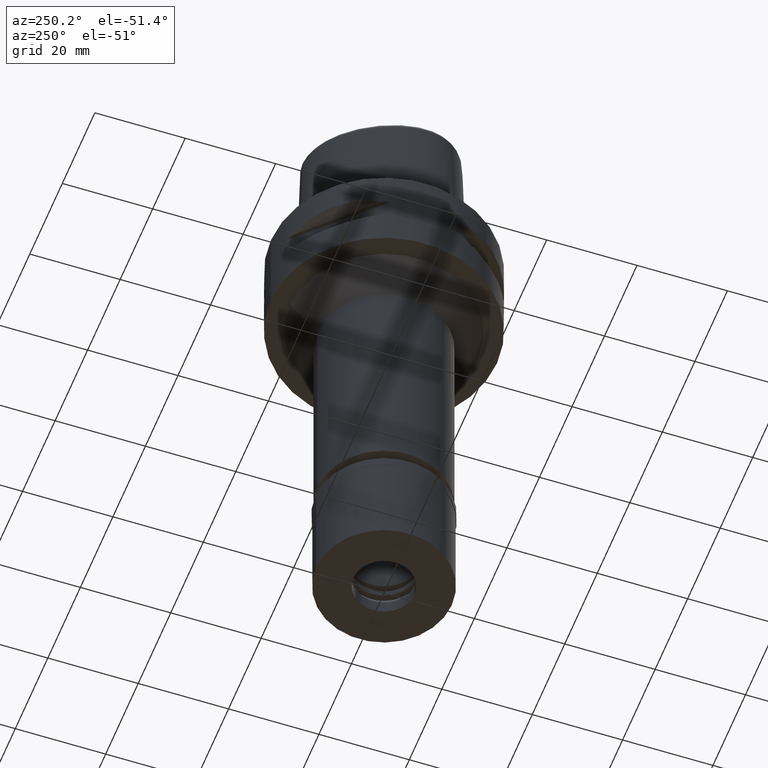
[diagram: clean part render]
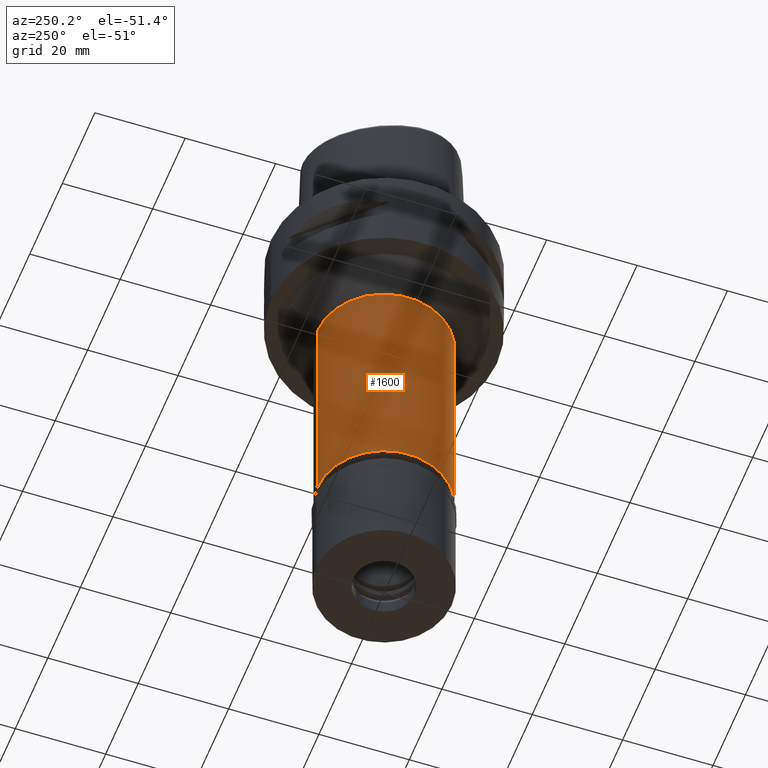
[diagram: same view with one face highlighted and labeled with its STEP entity id]
A machine part, auxiliary view. The second image highlights one B-rep face of the part: STEP entity #1600.
In plain terms, the highlighted cylindrical surface (partial cylindrical patch) has radius 14.75 mm, axis along (0, 0, -1).
Its self-contained STEP definition (entity closure, byte-faithful):
#95 = DIRECTION ( 'NONE',  ( 0.0000000000000000000, -1.000000000000000000, 0.0000000000000000000 ) ) ;
#165 = DIRECTION ( 'NONE',  ( 0.0000000000000000000, 0.0000000000000000000, -1.000000000000000000 ) ) ;
#238 = CARTESIAN_POINT ( 'NONE',  ( 0.0000000000000000000, -14.75000000000000000, -26.00000000000000000 ) ) ;
#468 = FACE_OUTER_BOUND ( 'NONE', #2930, .T. ) ;
#498 = VERTEX_POINT ( 'NONE', #1451 ) ;
#542 = VERTEX_POINT ( 'NONE', #1178 ) ;
#1178 = CARTESIAN_POINT ( 'NONE',  ( 0.0000000000000000000, -14.75000000000000000, -78.20000000000000284 ) ) ;
#1204 = DIRECTION ( 'NONE',  ( 0.0000000000000000000, 0.0000000000000000000, -1.000000000000000000 ) ) ;
#1307 = AXIS2_PLACEMENT_3D ( 'NONE', #2809, #1979, #95 ) ;
#1451 = CARTESIAN_POINT ( 'NONE',  ( 0.0000000000000000000, 14.75000000000000000, -78.20000000000000284 ) ) ;
#1513 = VERTEX_POINT ( 'NONE', #4588 ) ;
#1600 = ADVANCED_FACE ( 'NONE', ( #468 ), #4296, .T. ) ;
#1651 = AXIS2_PLACEMENT_3D ( 'NONE', #1991, #1204, #2726 ) ;
#1698 = ORIENTED_EDGE ( 'NONE', *, *, #4508, .T. ) ;
#1756 = LINE ( 'NONE', #4398, #1884 ) ;
#1793 = ORIENTED_EDGE ( 'NONE', *, *, #2088, .T. ) ;
#1884 = VECTOR ( 'NONE', #3262, 1000.000000000000000 ) ;
#1979 = DIRECTION ( 'NONE',  ( 0.0000000000000000000, 0.0000000000000000000, -1.000000000000000000 ) ) ;
#1991 = CARTESIAN_POINT ( 'NONE',  ( 0.0000000000000000000, 0.0000000000000000000, -26.00000000000000000 ) ) ;
#2082 = ORIENTED_EDGE ( 'NONE', *, *, #3281, .T. ) ;
#2088 = EDGE_CURVE ( 'NONE', #1513, #498, #3567, .T. ) ;
#2361 = CIRCLE ( 'NONE', #1651, 14.75000000000000000 ) ;
#2726 = DIRECTION ( 'NONE',  ( 0.0000000000000000000, -1.000000000000000000, 0.0000000000000000000 ) ) ;
#2809 = CARTESIAN_POINT ( 'NONE',  ( 0.0000000000000000000, 1.282817522107000087E-14, 4.750000000000000000 ) ) ;
#2930 = EDGE_LOOP ( 'NONE', ( #2082, #4503, #1698, #1793 ) ) ;
#3262 = DIRECTION ( 'NONE',  ( 0.0000000000000000000, 0.0000000000000000000, -1.000000000000000000 ) ) ;
#3281 = EDGE_CURVE ( 'NONE', #498, #542, #3610, .T. ) ;
#3567 = LINE ( 'NONE', #3984, #4571 ) ;
#3610 = CIRCLE ( 'NONE', #4892, 14.75000000000000000 ) ;
#3907 = DIRECTION ( 'NONE',  ( 0.0000000000000000000, 0.0000000000000000000, 1.000000000000000000 ) ) ;
#3984 = CARTESIAN_POINT ( 'NONE',  ( 0.0000000000000000000, 14.75000000000000000, -26.00000000000000000 ) ) ;
#4025 = DIRECTION ( 'NONE',  ( 0.0000000000000000000, 1.000000000000000000, 0.0000000000000000000 ) ) ;
#4173 = VERTEX_POINT ( 'NONE', #238 ) ;
#4296 = CYLINDRICAL_SURFACE ( 'NONE', #1307, 14.75000000000000000 ) ;
#4398 = CARTESIAN_POINT ( 'NONE',  ( 0.0000000000000000000, -14.75000000000000000, -26.00000000000000000 ) ) ;
#4503 = ORIENTED_EDGE ( 'NONE', *, *, #4757, .F. ) ;
#4508 = EDGE_CURVE ( 'NONE', #4173, #1513, #2361, .T. ) ;
#4571 = VECTOR ( 'NONE', #165, 1000.000000000000000 ) ;
#4588 = CARTESIAN_POINT ( 'NONE',  ( 0.0000000000000000000, 14.75000000000000000, -26.00000000000000000 ) ) ;
#4757 = EDGE_CURVE ( 'NONE', #4173, #542, #1756, .T. ) ;
#4771 = CARTESIAN_POINT ( 'NONE',  ( 0.0000000000000000000, 1.282817522107000087E-14, -78.20000000000000284 ) ) ;
#4892 = AXIS2_PLACEMENT_3D ( 'NONE', #4771, #3907, #4025 ) ;